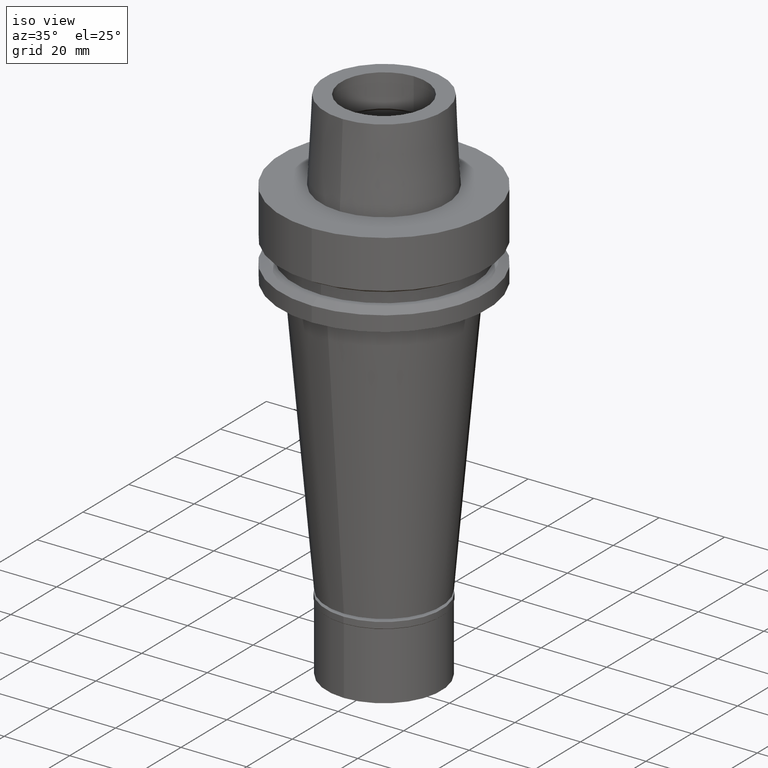
[diagram: clean part render]
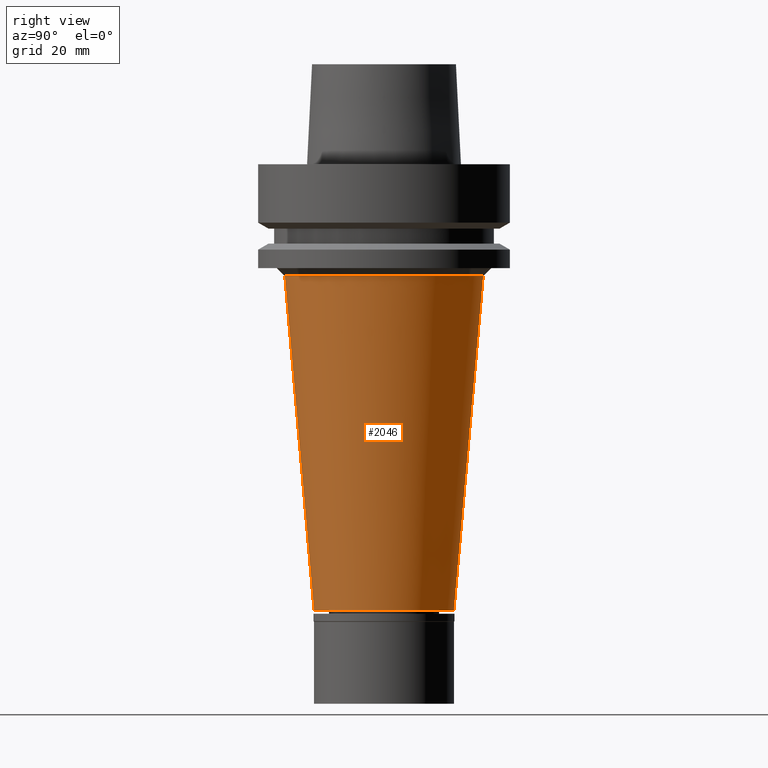
[diagram: tour spotlight — one face highlighted and labeled with its STEP entity id]
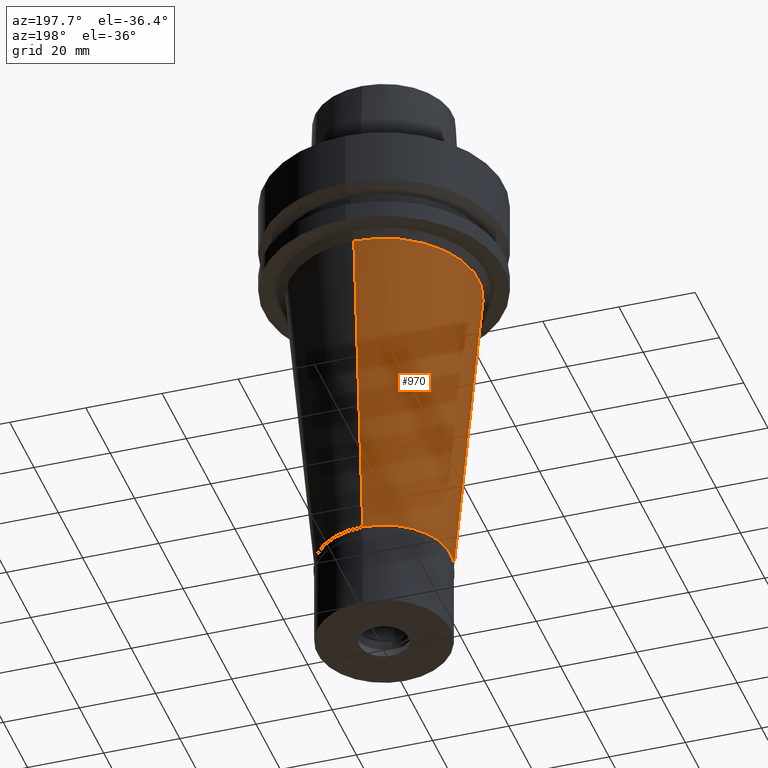
[diagram: tour spotlight — one face highlighted and labeled with its STEP entity id]
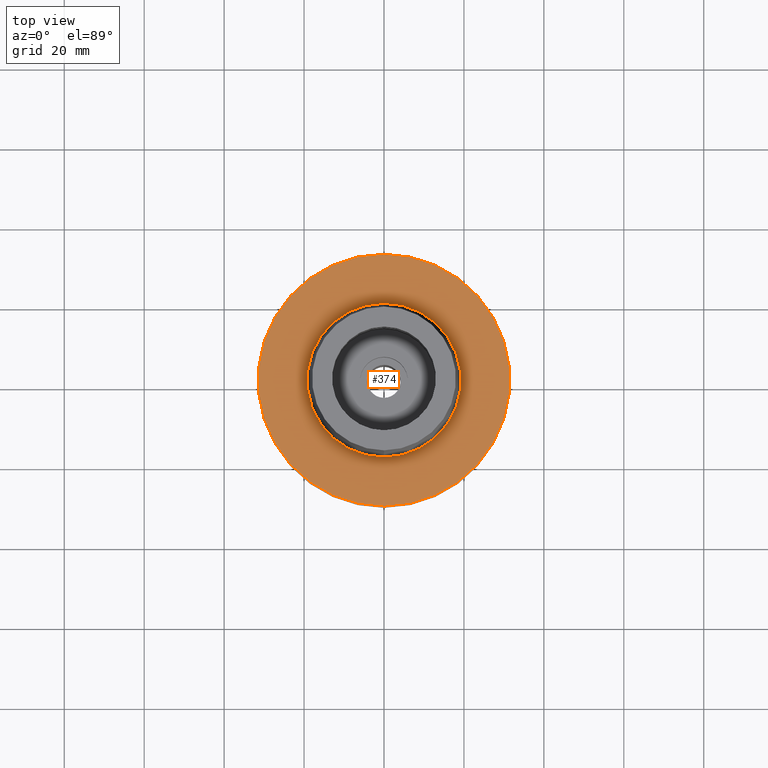
[diagram: tour spotlight — one face highlighted and labeled with its STEP entity id]
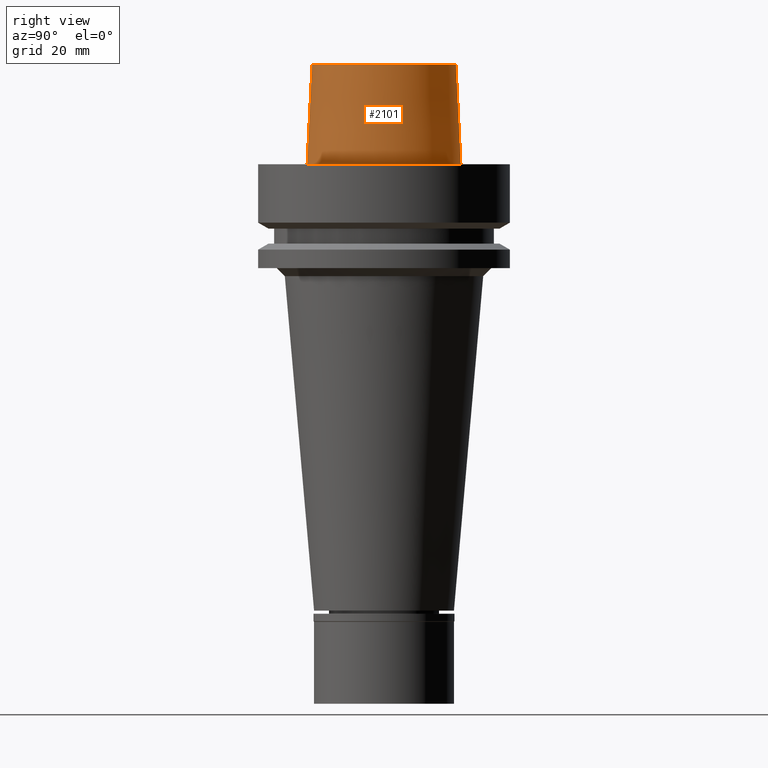
[diagram: tour spotlight — one face highlighted and labeled with its STEP entity id]
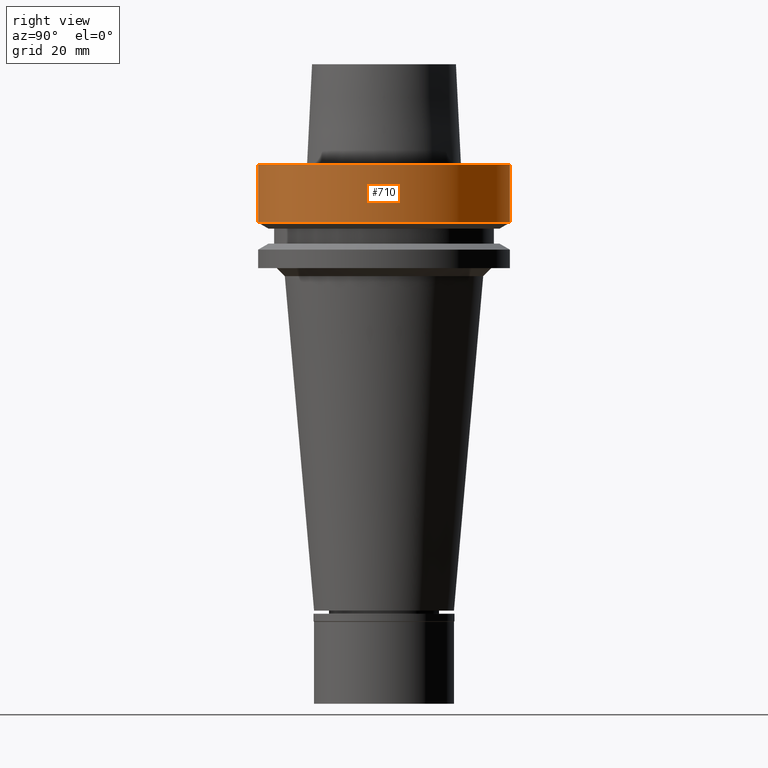
[diagram: tour spotlight — one face highlighted and labeled with its STEP entity id]
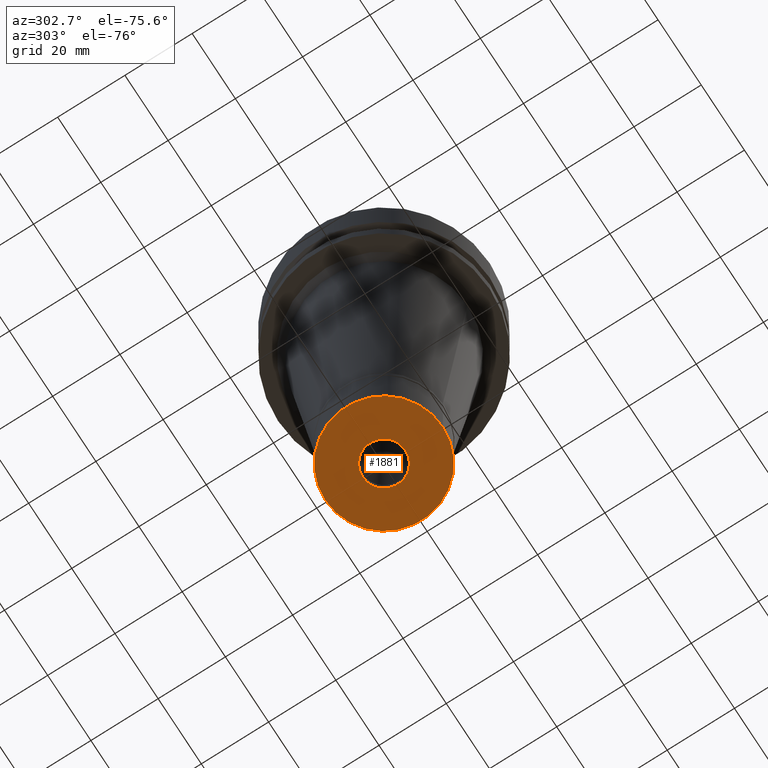
[diagram: tour spotlight — one face highlighted and labeled with its STEP entity id]
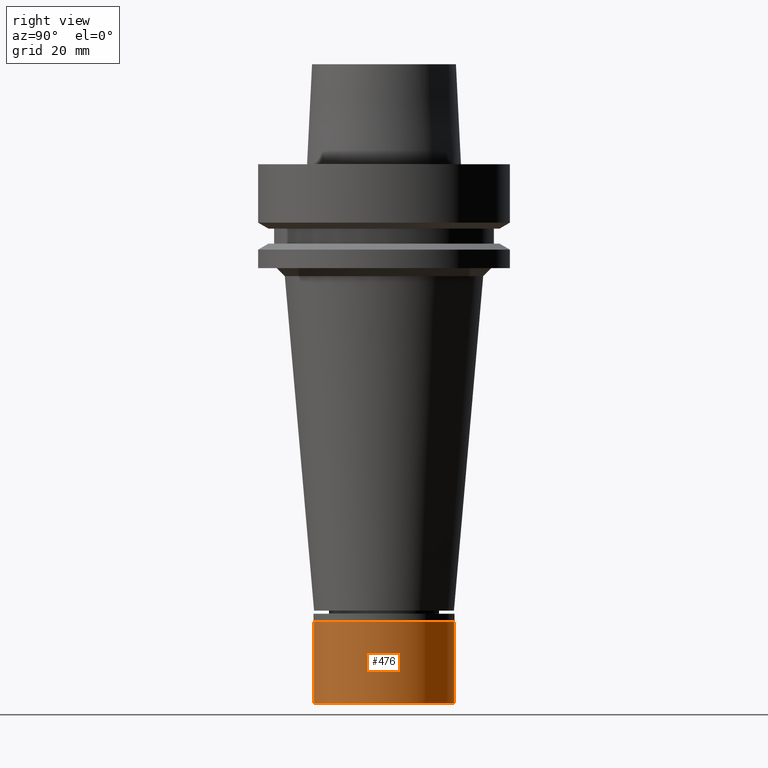
[diagram: tour spotlight — one face highlighted and labeled with its STEP entity id]
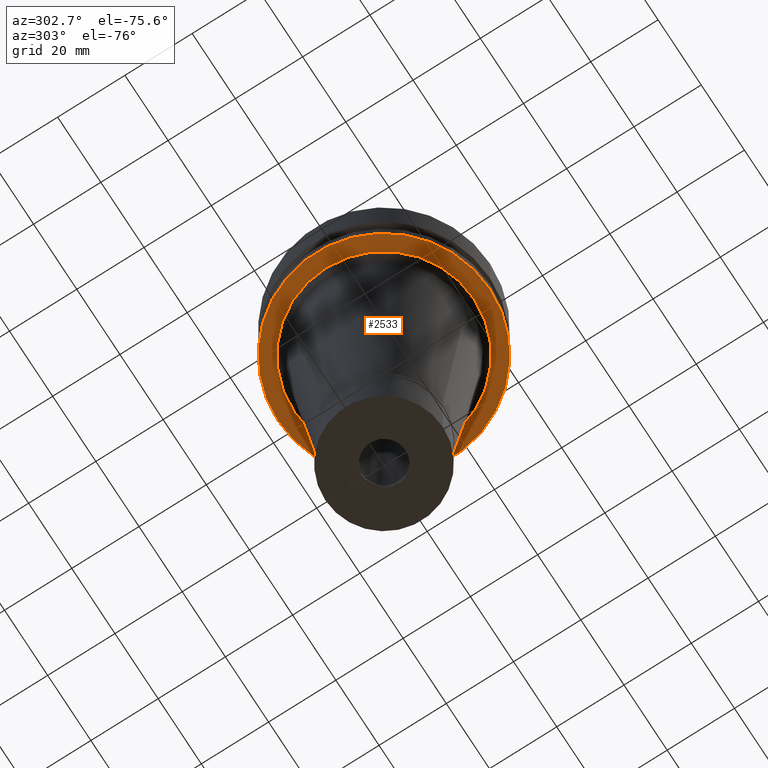
[diagram: tour spotlight — one face highlighted and labeled with its STEP entity id]
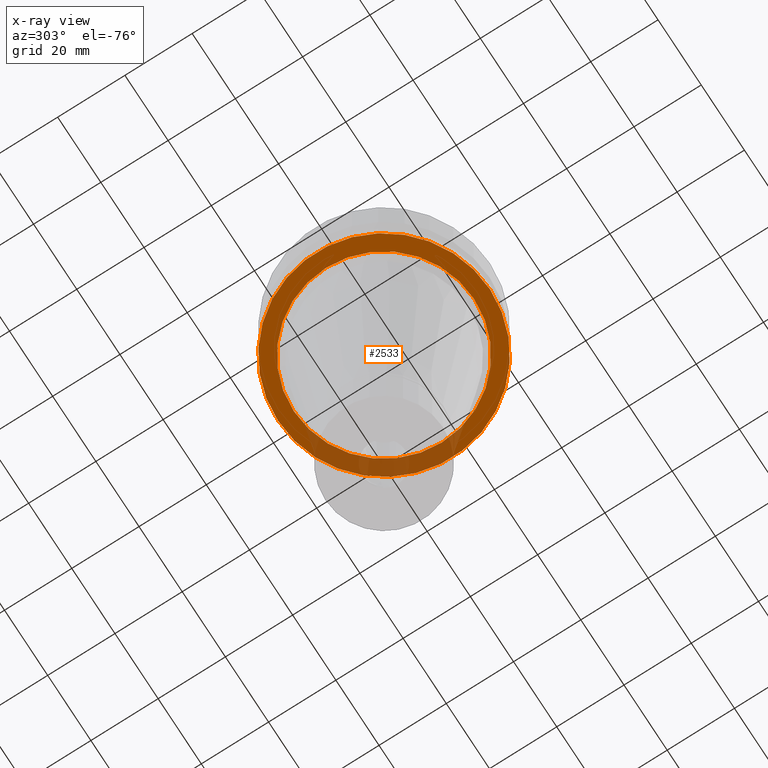
[diagram: x-ray of the same camera — body ghosted, this tour face saturated]
A machine part: a face-by-face anatomy tour. The part has 81 B-rep faces; the first image is the clean iso view, then the 8 largest visible faces are spotlighted one at a time (largest first), each with its STEP entity span.

Face 1 — right view, entity #2046. In plain terms, the highlighted conical surface has half-angle 5 deg.
Definition (entity closure, byte-faithful):
#174 = AXIS2_PLACEMENT_3D ( 'NONE', #2096, #1861, #338 ) ;
#192 = EDGE_LOOP ( 'NONE', ( #701, #1673, #830, #2825 ) ) ;
#198 = EDGE_CURVE ( 'NONE', #372, #1360, #465, .T. ) ;
#262 = CARTESIAN_POINT ( 'NONE',  ( 0.0000000000000000000, -24.82280113712000258, -28.00000000000000000 ) ) ;
#302 = CARTESIAN_POINT ( 'NONE',  ( 0.0000000000000000000, -24.82280113712000258, -28.00000000000000000 ) ) ;
#332 = CARTESIAN_POINT ( 'NONE',  ( 0.0000000000000000000, 24.82280113712000258, -28.00000000000000000 ) ) ;
#338 = DIRECTION ( 'NONE',  ( 0.0000000000000000000, -1.000000000000000000, 0.0000000000000000000 ) ) ;
#372 = VERTEX_POINT ( 'NONE', #443 ) ;
#443 = CARTESIAN_POINT ( 'NONE',  ( 0.0000000000000000000, -17.50000000000000000, -111.6999999999999886 ) ) ;
#465 = CIRCLE ( 'NONE', #1069, 17.50000000000000000 ) ;
#492 = CARTESIAN_POINT ( 'NONE',  ( 0.0000000000000000000, 0.0000000000000000000, -69.84999999999999432 ) ) ;
#521 = EDGE_CURVE ( 'NONE', #2835, #1360, #2209, .T. ) ;
#558 = CARTESIAN_POINT ( 'NONE',  ( 0.0000000000000000000, 17.50000000000000000, -111.6999999999999886 ) ) ;
#652 = VECTOR ( 'NONE', #1497, 1000.000000000000114 ) ;
#685 = VECTOR ( 'NONE', #996, 1000.000000000000114 ) ;
#701 = ORIENTED_EDGE ( 'NONE', *, *, #1047, .F. ) ;
#781 = DIRECTION ( 'NONE',  ( 0.0000000000000000000, -1.000000000000000000, 0.0000000000000000000 ) ) ;
#830 = ORIENTED_EDGE ( 'NONE', *, *, #198, .T. ) ;
#956 = DIRECTION ( 'NONE',  ( 0.0000000000000000000, 0.0000000000000000000, 1.000000000000000000 ) ) ;
#996 = DIRECTION ( 'NONE',  ( 0.0000000000000000000, 0.08715574274766389740, -0.9961946980917451011 ) ) ;
#1028 = EDGE_CURVE ( 'NONE', #2541, #372, #1134, .T. ) ;
#1047 = EDGE_CURVE ( 'NONE', #2541, #2835, #1199, .T. ) ;
#1069 = AXIS2_PLACEMENT_3D ( 'NONE', #2820, #1948, #781 ) ;
#1134 = LINE ( 'NONE', #262, #685 ) ;
#1199 = CIRCLE ( 'NONE', #174, 24.82280113712000258 ) ;
#1360 = VERTEX_POINT ( 'NONE', #558 ) ;
#1497 = DIRECTION ( 'NONE',  ( 0.0000000000000000000, -0.08715574274766389740, -0.9961946980917451011 ) ) ;
#1596 = FACE_OUTER_BOUND ( 'NONE', #192, .T. ) ;
#1673 = ORIENTED_EDGE ( 'NONE', *, *, #1028, .T. ) ;
#1799 = AXIS2_PLACEMENT_3D ( 'NONE', #492, #956, #1847 ) ;
#1847 = DIRECTION ( 'NONE',  ( 0.0000000000000000000, 1.000000000000000000, 0.0000000000000000000 ) ) ;
#1861 = DIRECTION ( 'NONE',  ( 0.0000000000000000000, 0.0000000000000000000, 1.000000000000000000 ) ) ;
#1948 = DIRECTION ( 'NONE',  ( 0.0000000000000000000, 0.0000000000000000000, 1.000000000000000000 ) ) ;
#2046 = ADVANCED_FACE ( 'NONE', ( #1596 ), #2680, .T. ) ;
#2096 = CARTESIAN_POINT ( 'NONE',  ( 0.0000000000000000000, 0.0000000000000000000, -28.00000000000000000 ) ) ;
#2209 = LINE ( 'NONE', #2657, #652 ) ;
#2541 = VERTEX_POINT ( 'NONE', #302 ) ;
#2657 = CARTESIAN_POINT ( 'NONE',  ( 0.0000000000000000000, 24.82280113712000258, -28.00000000000000000 ) ) ;
#2680 = CONICAL_SURFACE ( 'NONE', #1799, 21.16140056856000129, 0.08726646259969973729 ) ;
#2820 = CARTESIAN_POINT ( 'NONE',  ( 0.0000000000000000000, 0.0000000000000000000, -111.6999999999999886 ) ) ;
#2825 = ORIENTED_EDGE ( 'NONE', *, *, #521, .F. ) ;
#2835 = VERTEX_POINT ( 'NONE', #332 ) ;

Face 2 — auxiliary view, entity #970. In plain terms, the highlighted conical surface has half-angle 5 deg.
Definition (entity closure, byte-faithful):
#257 = CARTESIAN_POINT ( 'NONE',  ( 0.0000000000000000000, 0.0000000000000000000, -111.6999999999999886 ) ) ;
#262 = CARTESIAN_POINT ( 'NONE',  ( 0.0000000000000000000, -24.82280113712000258, -28.00000000000000000 ) ) ;
#302 = CARTESIAN_POINT ( 'NONE',  ( 0.0000000000000000000, -24.82280113712000258, -28.00000000000000000 ) ) ;
#332 = CARTESIAN_POINT ( 'NONE',  ( 0.0000000000000000000, 24.82280113712000258, -28.00000000000000000 ) ) ;
#347 = CARTESIAN_POINT ( 'NONE',  ( 0.0000000000000000000, 0.0000000000000000000, -28.00000000000000000 ) ) ;
#372 = VERTEX_POINT ( 'NONE', #443 ) ;
#443 = CARTESIAN_POINT ( 'NONE',  ( 0.0000000000000000000, -17.50000000000000000, -111.6999999999999886 ) ) ;
#521 = EDGE_CURVE ( 'NONE', #2835, #1360, #2209, .T. ) ;
#558 = CARTESIAN_POINT ( 'NONE',  ( 0.0000000000000000000, 17.50000000000000000, -111.6999999999999886 ) ) ;
#589 = AXIS2_PLACEMENT_3D ( 'NONE', #2272, #2676, #967 ) ;
#592 = AXIS2_PLACEMENT_3D ( 'NONE', #347, #1879, #2566 ) ;
#652 = VECTOR ( 'NONE', #1497, 1000.000000000000114 ) ;
#685 = VECTOR ( 'NONE', #996, 1000.000000000000114 ) ;
#723 = FACE_OUTER_BOUND ( 'NONE', #2079, .T. ) ;
#960 = EDGE_CURVE ( 'NONE', #1360, #372, #2494, .T. ) ;
#967 = DIRECTION ( 'NONE',  ( 0.0000000000000000000, 1.000000000000000000, 0.0000000000000000000 ) ) ;
#970 = ADVANCED_FACE ( 'NONE', ( #723 ), #2853, .T. ) ;
#996 = DIRECTION ( 'NONE',  ( 0.0000000000000000000, 0.08715574274766389740, -0.9961946980917451011 ) ) ;
#1028 = EDGE_CURVE ( 'NONE', #2541, #372, #1134, .T. ) ;
#1114 = ORIENTED_EDGE ( 'NONE', *, *, #1028, .F. ) ;
#1134 = LINE ( 'NONE', #262, #685 ) ;
#1358 = EDGE_CURVE ( 'NONE', #2541, #2835, #1389, .T. ) ;
#1360 = VERTEX_POINT ( 'NONE', #558 ) ;
#1389 = CIRCLE ( 'NONE', #592, 24.82280113712000258 ) ;
#1497 = DIRECTION ( 'NONE',  ( 0.0000000000000000000, -0.08715574274766389740, -0.9961946980917451011 ) ) ;
#1593 = DIRECTION ( 'NONE',  ( 0.0000000000000000000, 0.0000000000000000000, 1.000000000000000000 ) ) ;
#1879 = DIRECTION ( 'NONE',  ( 0.0000000000000000000, 0.0000000000000000000, -1.000000000000000000 ) ) ;
#1942 = ORIENTED_EDGE ( 'NONE', *, *, #1358, .T. ) ;
#2018 = DIRECTION ( 'NONE',  ( 0.0000000000000000000, 1.000000000000000000, 0.0000000000000000000 ) ) ;
#2079 = EDGE_LOOP ( 'NONE', ( #2616, #1114, #1942, #2091 ) ) ;
#2091 = ORIENTED_EDGE ( 'NONE', *, *, #521, .T. ) ;
#2209 = LINE ( 'NONE', #2657, #652 ) ;
#2272 = CARTESIAN_POINT ( 'NONE',  ( 0.0000000000000000000, 0.0000000000000000000, -69.84999999999999432 ) ) ;
#2438 = AXIS2_PLACEMENT_3D ( 'NONE', #257, #1593, #2018 ) ;
#2494 = CIRCLE ( 'NONE', #2438, 17.50000000000000000 ) ;
#2541 = VERTEX_POINT ( 'NONE', #302 ) ;
#2566 = DIRECTION ( 'NONE',  ( 0.0000000000000000000, -1.000000000000000000, 0.0000000000000000000 ) ) ;
#2616 = ORIENTED_EDGE ( 'NONE', *, *, #960, .T. ) ;
#2657 = CARTESIAN_POINT ( 'NONE',  ( 0.0000000000000000000, 24.82280113712000258, -28.00000000000000000 ) ) ;
#2676 = DIRECTION ( 'NONE',  ( 0.0000000000000000000, 0.0000000000000000000, 1.000000000000000000 ) ) ;
#2835 = VERTEX_POINT ( 'NONE', #332 ) ;
#2853 = CONICAL_SURFACE ( 'NONE', #589, 21.16140056856000129, 0.08726646259969973729 ) ;

Face 3 — top view, entity #374. In plain terms, the highlighted planar face has unit normal (0, 0, 1).
Definition (entity closure, byte-faithful):
#163 = DIRECTION ( 'NONE',  ( 1.000000000000000000, 0.0000000000000000000, 0.0000000000000000000 ) ) ;
#242 = CARTESIAN_POINT ( 'NONE',  ( 0.0000000000000000000, 0.0000000000000000000, 1.136868377215999875E-13 ) ) ;
#374 = ADVANCED_FACE ( 'NONE', ( #2024, #2464 ), #1995, .T. ) ;
#451 = CIRCLE ( 'NONE', #1334, 19.24999954280000125 ) ;
#503 = VERTEX_POINT ( 'NONE', #1584 ) ;
#611 = VERTEX_POINT ( 'NONE', #1038 ) ;
#643 = AXIS2_PLACEMENT_3D ( 'NONE', #1949, #2179, #1316 ) ;
#718 = ORIENTED_EDGE ( 'NONE', *, *, #769, .F. ) ;
#750 = VERTEX_POINT ( 'NONE', #1359 ) ;
#769 = EDGE_CURVE ( 'NONE', #750, #503, #835, .T. ) ;
#791 = AXIS2_PLACEMENT_3D ( 'NONE', #1331, #1046, #163 ) ;
#802 = DIRECTION ( 'NONE',  ( 0.0000000000000000000, -1.000000000000000000, 0.0000000000000000000 ) ) ;
#835 = CIRCLE ( 'NONE', #2457, 31.50000000000000000 ) ;
#1038 = CARTESIAN_POINT ( 'NONE',  ( 0.0000000000000000000, 19.24999954280000125, 3.410605131648000255E-13 ) ) ;
#1044 = DIRECTION ( 'NONE',  ( 0.0000000000000000000, 0.0000000000000000000, 1.000000000000000000 ) ) ;
#1046 = DIRECTION ( 'NONE',  ( 0.0000000000000000000, 0.0000000000000000000, 1.000000000000000000 ) ) ;
#1112 = DIRECTION ( 'NONE',  ( 0.0000000000000000000, 0.0000000000000000000, -1.000000000000000000 ) ) ;
#1285 = CARTESIAN_POINT ( 'NONE',  ( 0.0000000000000000000, 0.0000000000000000000, 5.115907697473000027E-13 ) ) ;
#1316 = DIRECTION ( 'NONE',  ( 0.0000000000000000000, 1.000000000000000000, 0.0000000000000000000 ) ) ;
#1331 = CARTESIAN_POINT ( 'NONE',  ( 0.0000000000000000000, 0.0000000000000000000, 0.0000000000000000000 ) ) ;
#1334 = AXIS2_PLACEMENT_3D ( 'NONE', #1285, #2159, #2841 ) ;
#1345 = ORIENTED_EDGE ( 'NONE', *, *, #2349, .F. ) ;
#1359 = CARTESIAN_POINT ( 'NONE',  ( 0.0000000000000000000, -31.50000000000000000, 1.136868377215999875E-13 ) ) ;
#1436 = CARTESIAN_POINT ( 'NONE',  ( 0.0000000000000000000, -19.24999954280000125, 3.410605131648000255E-13 ) ) ;
#1455 = CARTESIAN_POINT ( 'NONE',  ( 0.0000000000000000000, 0.0000000000000000000, 5.115907697473000027E-13 ) ) ;
#1541 = DIRECTION ( 'NONE',  ( 0.0000000000000000000, -1.000000000000000000, 0.0000000000000000000 ) ) ;
#1584 = CARTESIAN_POINT ( 'NONE',  ( 0.0000000000000000000, 31.50000000000000000, 1.136868377215999875E-13 ) ) ;
#1613 = CIRCLE ( 'NONE', #643, 31.50000000000000000 ) ;
#1722 = ORIENTED_EDGE ( 'NONE', *, *, #2433, .F. ) ;
#1878 = EDGE_LOOP ( 'NONE', ( #1722, #718 ) ) ;
#1949 = CARTESIAN_POINT ( 'NONE',  ( 0.0000000000000000000, 0.0000000000000000000, 1.136868377215999875E-13 ) ) ;
#1995 = PLANE ( 'NONE',  #791 ) ;
#2024 = FACE_OUTER_BOUND ( 'NONE', #1878, .T. ) ;
#2029 = CIRCLE ( 'NONE', #2160, 19.24999954280000125 ) ;
#2060 = ORIENTED_EDGE ( 'NONE', *, *, #2731, .F. ) ;
#2159 = DIRECTION ( 'NONE',  ( 0.0000000000000000000, 0.0000000000000000000, 1.000000000000000000 ) ) ;
#2160 = AXIS2_PLACEMENT_3D ( 'NONE', #1455, #1044, #802 ) ;
#2179 = DIRECTION ( 'NONE',  ( 0.0000000000000000000, 0.0000000000000000000, -1.000000000000000000 ) ) ;
#2202 = VERTEX_POINT ( 'NONE', #1436 ) ;
#2349 = EDGE_CURVE ( 'NONE', #611, #2202, #451, .T. ) ;
#2433 = EDGE_CURVE ( 'NONE', #503, #750, #1613, .T. ) ;
#2457 = AXIS2_PLACEMENT_3D ( 'NONE', #242, #1112, #1541 ) ;
#2464 = FACE_BOUND ( 'NONE', #2810, .T. ) ;
#2731 = EDGE_CURVE ( 'NONE', #2202, #611, #2029, .T. ) ;
#2810 = EDGE_LOOP ( 'NONE', ( #1345, #2060 ) ) ;
#2841 = DIRECTION ( 'NONE',  ( 0.0000000000000000000, 1.000000000000000000, 0.0000000000000000000 ) ) ;

Face 4 — right view, entity #2101. In plain terms, the highlighted conical surface has half-angle 2.862 deg.
Definition (entity closure, byte-faithful):
#8 = VERTEX_POINT ( 'NONE', #1832 ) ;
#15 = CARTESIAN_POINT ( 'NONE',  ( 0.0000000000000000000, -18.00000182882000033, 25.00000000000000000 ) ) ;
#34 = CIRCLE ( 'NONE', #364, 18.00000182882000033 ) ;
#166 = DIRECTION ( 'NONE',  ( 0.0000000000000000000, 0.04993752584486958745, -0.9987523434327917338 ) ) ;
#187 = DIRECTION ( 'NONE',  ( 0.0000000000000000000, 1.000000000000000000, 0.0000000000000000000 ) ) ;
#364 = AXIS2_PLACEMENT_3D ( 'NONE', #2400, #849, #187 ) ;
#584 = EDGE_CURVE ( 'NONE', #8, #611, #1715, .T. ) ;
#611 = VERTEX_POINT ( 'NONE', #1038 ) ;
#687 = DIRECTION ( 'NONE',  ( 0.0000000000000000000, -0.04993752584486958745, -0.9987523434327917338 ) ) ;
#782 = EDGE_CURVE ( 'NONE', #1230, #2202, #2666, .T. ) ;
#802 = DIRECTION ( 'NONE',  ( 0.0000000000000000000, -1.000000000000000000, 0.0000000000000000000 ) ) ;
#849 = DIRECTION ( 'NONE',  ( 0.0000000000000000000, 0.0000000000000000000, -1.000000000000000000 ) ) ;
#873 = AXIS2_PLACEMENT_3D ( 'NONE', #2790, #1265, #2341 ) ;
#1038 = CARTESIAN_POINT ( 'NONE',  ( 0.0000000000000000000, 19.24999954280000125, 3.410605131648000255E-13 ) ) ;
#1044 = DIRECTION ( 'NONE',  ( 0.0000000000000000000, 0.0000000000000000000, 1.000000000000000000 ) ) ;
#1060 = ORIENTED_EDGE ( 'NONE', *, *, #2459, .T. ) ;
#1230 = VERTEX_POINT ( 'NONE', #1405 ) ;
#1265 = DIRECTION ( 'NONE',  ( 0.0000000000000000000, 0.0000000000000000000, -1.000000000000000000 ) ) ;
#1292 = ORIENTED_EDGE ( 'NONE', *, *, #2731, .T. ) ;
#1366 = ORIENTED_EDGE ( 'NONE', *, *, #584, .F. ) ;
#1405 = CARTESIAN_POINT ( 'NONE',  ( 0.0000000000000000000, -18.00000182882000033, 25.00000000000000000 ) ) ;
#1436 = CARTESIAN_POINT ( 'NONE',  ( 0.0000000000000000000, -19.24999954280000125, 3.410605131648000255E-13 ) ) ;
#1455 = CARTESIAN_POINT ( 'NONE',  ( 0.0000000000000000000, 0.0000000000000000000, 5.115907697473000027E-13 ) ) ;
#1704 = CONICAL_SURFACE ( 'NONE', #873, 18.62500068580999724, 0.04995830450907576964 ) ;
#1715 = LINE ( 'NONE', #2138, #2591 ) ;
#1832 = CARTESIAN_POINT ( 'NONE',  ( 0.0000000000000000000, 18.00000182882000033, 25.00000000000000000 ) ) ;
#2029 = CIRCLE ( 'NONE', #2160, 19.24999954280000125 ) ;
#2101 = ADVANCED_FACE ( 'NONE', ( #2329 ), #1704, .T. ) ;
#2138 = CARTESIAN_POINT ( 'NONE',  ( 0.0000000000000000000, 18.00000182882000033, 25.00000000000000000 ) ) ;
#2160 = AXIS2_PLACEMENT_3D ( 'NONE', #1455, #1044, #802 ) ;
#2202 = VERTEX_POINT ( 'NONE', #1436 ) ;
#2329 = FACE_OUTER_BOUND ( 'NONE', #2678, .T. ) ;
#2341 = DIRECTION ( 'NONE',  ( 0.0000000000000000000, -1.000000000000000000, 0.0000000000000000000 ) ) ;
#2400 = CARTESIAN_POINT ( 'NONE',  ( 0.0000000000000000000, 0.0000000000000000000, 25.00000000000000000 ) ) ;
#2407 = VECTOR ( 'NONE', #687, 999.9999999999998863 ) ;
#2459 = EDGE_CURVE ( 'NONE', #8, #1230, #34, .T. ) ;
#2591 = VECTOR ( 'NONE', #166, 999.9999999999998863 ) ;
#2666 = LINE ( 'NONE', #15, #2407 ) ;
#2678 = EDGE_LOOP ( 'NONE', ( #1060, #2746, #1292, #1366 ) ) ;
#2731 = EDGE_CURVE ( 'NONE', #2202, #611, #2029, .T. ) ;
#2746 = ORIENTED_EDGE ( 'NONE', *, *, #782, .T. ) ;
#2790 = CARTESIAN_POINT ( 'NONE',  ( 0.0000000000000000000, 0.0000000000000000000, 12.50000000000000000 ) ) ;

Face 5 — right view, entity #710. In plain terms, the highlighted cylindrical surface (partial cylindrical patch) has radius 31.5 mm, axis along (0, 0, 1).
Definition (entity closure, byte-faithful):
#29 = DIRECTION ( 'NONE',  ( 0.0000000000000000000, -4.130355870612999632E-14, -1.000000000000000000 ) ) ;
#158 = EDGE_CURVE ( 'NONE', #503, #2050, #185, .T. ) ;
#185 = LINE ( 'NONE', #2385, #607 ) ;
#359 = DIRECTION ( 'NONE',  ( 0.0000000000000000000, 1.000000000000000000, 0.0000000000000000000 ) ) ;
#381 = AXIS2_PLACEMENT_3D ( 'NONE', #1945, #2395, #1313 ) ;
#389 = ORIENTED_EDGE ( 'NONE', *, *, #2697, .T. ) ;
#503 = VERTEX_POINT ( 'NONE', #1584 ) ;
#573 = CARTESIAN_POINT ( 'NONE',  ( 0.0000000000000000000, 0.0000000000000000000, -135.9650000000000034 ) ) ;
#607 = VECTOR ( 'NONE', #2374, 1000.000000000000000 ) ;
#643 = AXIS2_PLACEMENT_3D ( 'NONE', #1949, #2179, #1316 ) ;
#710 = ADVANCED_FACE ( 'NONE', ( #1885 ), #2557, .T. ) ;
#731 = EDGE_CURVE ( 'NONE', #2416, #2050, #793, .T. ) ;
#750 = VERTEX_POINT ( 'NONE', #1359 ) ;
#793 = CIRCLE ( 'NONE', #381, 31.50000000000000000 ) ;
#1313 = DIRECTION ( 'NONE',  ( 0.0000000000000000000, -1.000000000000000000, 0.0000000000000000000 ) ) ;
#1316 = DIRECTION ( 'NONE',  ( 0.0000000000000000000, 1.000000000000000000, 0.0000000000000000000 ) ) ;
#1323 = EDGE_LOOP ( 'NONE', ( #2767, #389, #1439, #1990 ) ) ;
#1359 = CARTESIAN_POINT ( 'NONE',  ( 0.0000000000000000000, -31.50000000000000000, 1.136868377215999875E-13 ) ) ;
#1439 = ORIENTED_EDGE ( 'NONE', *, *, #731, .T. ) ;
#1584 = CARTESIAN_POINT ( 'NONE',  ( 0.0000000000000000000, 31.50000000000000000, 1.136868377215999875E-13 ) ) ;
#1613 = CIRCLE ( 'NONE', #643, 31.50000000000000000 ) ;
#1792 = CARTESIAN_POINT ( 'NONE',  ( 0.0000000000000000000, -31.50000000000000000, 7.579122514774000189E-14 ) ) ;
#1885 = FACE_OUTER_BOUND ( 'NONE', #1323, .T. ) ;
#1931 = VECTOR ( 'NONE', #29, 1000.000000000000000 ) ;
#1945 = CARTESIAN_POINT ( 'NONE',  ( 0.0000000000000000000, 0.0000000000000000000, -14.62250092523999889 ) ) ;
#1949 = CARTESIAN_POINT ( 'NONE',  ( 0.0000000000000000000, 0.0000000000000000000, 1.136868377215999875E-13 ) ) ;
#1990 = ORIENTED_EDGE ( 'NONE', *, *, #158, .F. ) ;
#2043 = AXIS2_PLACEMENT_3D ( 'NONE', #573, #2340, #359 ) ;
#2050 = VERTEX_POINT ( 'NONE', #2511 ) ;
#2179 = DIRECTION ( 'NONE',  ( 0.0000000000000000000, 0.0000000000000000000, -1.000000000000000000 ) ) ;
#2235 = LINE ( 'NONE', #1792, #1931 ) ;
#2340 = DIRECTION ( 'NONE',  ( 0.0000000000000000000, 0.0000000000000000000, 1.000000000000000000 ) ) ;
#2374 = DIRECTION ( 'NONE',  ( 0.0000000000000000000, 4.130355870612999632E-14, -1.000000000000000000 ) ) ;
#2385 = CARTESIAN_POINT ( 'NONE',  ( 0.0000000000000000000, 31.50000000000000000, 7.579122514774000189E-14 ) ) ;
#2395 = DIRECTION ( 'NONE',  ( 0.0000000000000000000, 0.0000000000000000000, 1.000000000000000000 ) ) ;
#2416 = VERTEX_POINT ( 'NONE', #2655 ) ;
#2433 = EDGE_CURVE ( 'NONE', #503, #750, #1613, .T. ) ;
#2511 = CARTESIAN_POINT ( 'NONE',  ( 0.0000000000000000000, 31.50000000000000000, -14.62250092523999889 ) ) ;
#2557 = CYLINDRICAL_SURFACE ( 'NONE', #2043, 31.50000000000000000 ) ;
#2655 = CARTESIAN_POINT ( 'NONE',  ( 0.0000000000000000000, -31.50000000000000000, -14.62250092523999889 ) ) ;
#2697 = EDGE_CURVE ( 'NONE', #750, #2416, #2235, .T. ) ;
#2767 = ORIENTED_EDGE ( 'NONE', *, *, #2433, .T. ) ;

Face 6 — auxiliary view, entity #1881. In plain terms, the highlighted planar face has unit normal (0, 0, -1).
Definition (entity closure, byte-faithful):
#55 = DIRECTION ( 'NONE',  ( 0.0000000000000000000, 0.0000000000000000000, -1.000000000000000000 ) ) ;
#74 = CARTESIAN_POINT ( 'NONE',  ( 0.0000000000000000000, 0.0000000000000000000, -22.50000000000000000 ) ) ;
#102 = DIRECTION ( 'NONE',  ( 0.0000000000000000000, -1.000000000000000000, 0.0000000000000000000 ) ) ;
#186 = AXIS2_PLACEMENT_3D ( 'NONE', #629, #646, #2612 ) ;
#231 = CIRCLE ( 'NONE', #2219, 6.349999999998999556 ) ;
#292 = EDGE_CURVE ( 'NONE', #623, #2553, #2086, .T. ) ;
#435 = ORIENTED_EDGE ( 'NONE', *, *, #2813, .F. ) ;
#471 = CARTESIAN_POINT ( 'NONE',  ( 0.0000000000000000000, -17.50000000000000000, -22.50000000000000000 ) ) ;
#486 = DIRECTION ( 'NONE',  ( 0.0000000000000000000, 0.0000000000000000000, 1.000000000000000000 ) ) ;
#495 = ORIENTED_EDGE ( 'NONE', *, *, #292, .F. ) ;
#623 = VERTEX_POINT ( 'NONE', #806 ) ;
#629 = CARTESIAN_POINT ( 'NONE',  ( 0.0000000000000000000, 0.0000000000000000000, -22.50000000000000000 ) ) ;
#646 = DIRECTION ( 'NONE',  ( 0.0000000000000000000, 0.0000000000000000000, 1.000000000000000000 ) ) ;
#686 = AXIS2_PLACEMENT_3D ( 'NONE', #1481, #2576, #1681 ) ;
#727 = CARTESIAN_POINT ( 'NONE',  ( 0.0000000000000000000, 0.0000000000000000000, -22.50000000000000000 ) ) ;
#751 = DIRECTION ( 'NONE',  ( 0.0000000000000000000, -1.000000000000000000, 0.0000000000000000000 ) ) ;
#806 = CARTESIAN_POINT ( 'NONE',  ( 0.0000000000000000000, 17.50000000000000000, -22.50000000000000000 ) ) ;
#988 = DIRECTION ( 'NONE',  ( 0.0000000000000000000, -1.000000000000000000, 0.0000000000000000000 ) ) ;
#1178 = PLANE ( 'NONE',  #2081 ) ;
#1188 = CARTESIAN_POINT ( 'NONE',  ( 0.0000000000000000000, 0.0000000000000000000, -22.50000000000000000 ) ) ;
#1390 = ORIENTED_EDGE ( 'NONE', *, *, #1917, .F. ) ;
#1448 = VERTEX_POINT ( 'NONE', #2538 ) ;
#1473 = CIRCLE ( 'NONE', #1789, 17.50000000000000000 ) ;
#1481 = CARTESIAN_POINT ( 'NONE',  ( 0.0000000000000000000, 0.0000000000000000000, -22.50000000000000000 ) ) ;
#1608 = DIRECTION ( 'NONE',  ( 0.0000000000000000000, 0.0000000000000000000, -1.000000000000000000 ) ) ;
#1681 = DIRECTION ( 'NONE',  ( 0.0000000000000000000, 1.000000000000000000, 0.0000000000000000000 ) ) ;
#1733 = EDGE_LOOP ( 'NONE', ( #495, #2467 ) ) ;
#1789 = AXIS2_PLACEMENT_3D ( 'NONE', #74, #486, #751 ) ;
#1881 = ADVANCED_FACE ( 'NONE', ( #2530, #2736 ), #1178, .T. ) ;
#1912 = VERTEX_POINT ( 'NONE', #2287 ) ;
#1917 = EDGE_CURVE ( 'NONE', #1912, #1448, #231, .T. ) ;
#2078 = CIRCLE ( 'NONE', #686, 6.349999999998999556 ) ;
#2081 = AXIS2_PLACEMENT_3D ( 'NONE', #727, #55, #102 ) ;
#2086 = CIRCLE ( 'NONE', #186, 17.50000000000000000 ) ;
#2095 = EDGE_LOOP ( 'NONE', ( #435, #1390 ) ) ;
#2219 = AXIS2_PLACEMENT_3D ( 'NONE', #1188, #1608, #988 ) ;
#2287 = CARTESIAN_POINT ( 'NONE',  ( 0.0000000000000000000, -6.349999999998999556, -22.50000000000000000 ) ) ;
#2467 = ORIENTED_EDGE ( 'NONE', *, *, #2601, .F. ) ;
#2530 = FACE_OUTER_BOUND ( 'NONE', #1733, .T. ) ;
#2538 = CARTESIAN_POINT ( 'NONE',  ( 0.0000000000000000000, 6.349999999998999556, -22.50000000000000000 ) ) ;
#2553 = VERTEX_POINT ( 'NONE', #471 ) ;
#2576 = DIRECTION ( 'NONE',  ( 0.0000000000000000000, 0.0000000000000000000, -1.000000000000000000 ) ) ;
#2601 = EDGE_CURVE ( 'NONE', #2553, #623, #1473, .T. ) ;
#2612 = DIRECTION ( 'NONE',  ( 0.0000000000000000000, 1.000000000000000000, 0.0000000000000000000 ) ) ;
#2736 = FACE_BOUND ( 'NONE', #2095, .T. ) ;
#2813 = EDGE_CURVE ( 'NONE', #1448, #1912, #2078, .T. ) ;

Face 7 — right view, entity #476. In plain terms, the highlighted cylindrical surface (partial cylindrical patch) has radius 17.5 mm, axis along (0, 0, -1).
Definition (entity closure, byte-faithful):
#21 = DIRECTION ( 'NONE',  ( 0.0000000000000000000, -1.000000000000000000, 0.0000000000000000000 ) ) ;
#24 = ORIENTED_EDGE ( 'NONE', *, *, #2601, .T. ) ;
#74 = CARTESIAN_POINT ( 'NONE',  ( 0.0000000000000000000, 0.0000000000000000000, -22.50000000000000000 ) ) ;
#270 = LINE ( 'NONE', #952, #1884 ) ;
#385 = CARTESIAN_POINT ( 'NONE',  ( 0.0000000000000000000, -17.50000000000000000, -2.000000000000000000 ) ) ;
#399 = DIRECTION ( 'NONE',  ( 0.0000000000000000000, 1.000000000000000000, 0.0000000000000000000 ) ) ;
#404 = ORIENTED_EDGE ( 'NONE', *, *, #947, .T. ) ;
#409 = VERTEX_POINT ( 'NONE', #897 ) ;
#471 = CARTESIAN_POINT ( 'NONE',  ( 0.0000000000000000000, -17.50000000000000000, -22.50000000000000000 ) ) ;
#476 = ADVANCED_FACE ( 'NONE', ( #481 ), #827, .T. ) ;
#481 = FACE_OUTER_BOUND ( 'NONE', #1745, .T. ) ;
#486 = DIRECTION ( 'NONE',  ( 0.0000000000000000000, 0.0000000000000000000, 1.000000000000000000 ) ) ;
#566 = EDGE_CURVE ( 'NONE', #409, #2761, #884, .T. ) ;
#605 = CARTESIAN_POINT ( 'NONE',  ( 0.0000000000000000000, 0.0000000000000000000, -2.000000000000000000 ) ) ;
#623 = VERTEX_POINT ( 'NONE', #806 ) ;
#714 = CARTESIAN_POINT ( 'NONE',  ( 0.0000000000000000000, 0.0000000000000000000, 0.0000000000000000000 ) ) ;
#751 = DIRECTION ( 'NONE',  ( 0.0000000000000000000, -1.000000000000000000, 0.0000000000000000000 ) ) ;
#754 = AXIS2_PLACEMENT_3D ( 'NONE', #605, #2777, #399 ) ;
#806 = CARTESIAN_POINT ( 'NONE',  ( 0.0000000000000000000, 17.50000000000000000, -22.50000000000000000 ) ) ;
#827 = CYLINDRICAL_SURFACE ( 'NONE', #1025, 17.50000000000000000 ) ;
#884 = CIRCLE ( 'NONE', #754, 17.50000000000000000 ) ;
#897 = CARTESIAN_POINT ( 'NONE',  ( 0.0000000000000000000, 17.50000000000000000, -2.000000000000000000 ) ) ;
#947 = EDGE_CURVE ( 'NONE', #2761, #2553, #270, .T. ) ;
#952 = CARTESIAN_POINT ( 'NONE',  ( 0.0000000000000000000, -17.50000000000000000, -2.000000000000000000 ) ) ;
#1025 = AXIS2_PLACEMENT_3D ( 'NONE', #714, #1806, #21 ) ;
#1058 = VECTOR ( 'NONE', #1766, 1000.000000000000000 ) ;
#1124 = EDGE_CURVE ( 'NONE', #409, #623, #2444, .T. ) ;
#1365 = CARTESIAN_POINT ( 'NONE',  ( 0.0000000000000000000, 17.50000000000000000, -2.000000000000000000 ) ) ;
#1465 = ORIENTED_EDGE ( 'NONE', *, *, #566, .T. ) ;
#1473 = CIRCLE ( 'NONE', #1789, 17.50000000000000000 ) ;
#1745 = EDGE_LOOP ( 'NONE', ( #1465, #404, #24, #2738 ) ) ;
#1766 = DIRECTION ( 'NONE',  ( 0.0000000000000000000, 0.0000000000000000000, -1.000000000000000000 ) ) ;
#1789 = AXIS2_PLACEMENT_3D ( 'NONE', #74, #486, #751 ) ;
#1798 = DIRECTION ( 'NONE',  ( 0.0000000000000000000, 0.0000000000000000000, -1.000000000000000000 ) ) ;
#1806 = DIRECTION ( 'NONE',  ( 0.0000000000000000000, 0.0000000000000000000, -1.000000000000000000 ) ) ;
#1884 = VECTOR ( 'NONE', #1798, 1000.000000000000000 ) ;
#2444 = LINE ( 'NONE', #1365, #1058 ) ;
#2553 = VERTEX_POINT ( 'NONE', #471 ) ;
#2601 = EDGE_CURVE ( 'NONE', #2553, #623, #1473, .T. ) ;
#2738 = ORIENTED_EDGE ( 'NONE', *, *, #1124, .F. ) ;
#2761 = VERTEX_POINT ( 'NONE', #385 ) ;
#2777 = DIRECTION ( 'NONE',  ( 0.0000000000000000000, 0.0000000000000000000, -1.000000000000000000 ) ) ;

Face 8 — auxiliary view, entity #2533. An x-ray twin of the same camera follows (body ghosted, this face saturated) — the face is partly hidden behind the body. In plain terms, the highlighted planar face has unit normal (0, 0, 1).
Definition (entity closure, byte-faithful):
#83 = EDGE_LOOP ( 'NONE', ( #600, #1599 ) ) ;
#110 = DIRECTION ( 'NONE',  ( 0.0000000000000000000, 1.000000000000000000, 0.0000000000000000000 ) ) ;
#114 = DIRECTION ( 'NONE',  ( 0.0000000000000000000, 0.0000000000000000000, 1.000000000000000000 ) ) ;
#140 = CIRCLE ( 'NONE', #1119, 26.82280113712000258 ) ;
#180 = DIRECTION ( 'NONE',  ( 0.0000000000000000000, -1.000000000000000000, 0.0000000000000000000 ) ) ;
#182 = CIRCLE ( 'NONE', #2861, 31.50000000000000000 ) ;
#266 = CARTESIAN_POINT ( 'NONE',  ( 0.0000000000000000000, 26.82280113712000258, -26.00000000000000000 ) ) ;
#322 = AXIS2_PLACEMENT_3D ( 'NONE', #1332, #114, #1646 ) ;
#428 = CARTESIAN_POINT ( 'NONE',  ( 0.0000000000000000000, 0.0000000000000000000, -26.00000000000000000 ) ) ;
#600 = ORIENTED_EDGE ( 'NONE', *, *, #1068, .F. ) ;
#639 = AXIS2_PLACEMENT_3D ( 'NONE', #1447, #1859, #110 ) ;
#648 = FACE_BOUND ( 'NONE', #1263, .T. ) ;
#658 = EDGE_CURVE ( 'NONE', #1774, #2537, #140, .T. ) ;
#705 = DIRECTION ( 'NONE',  ( 1.000000000000000000, 0.0000000000000000000, 0.0000000000000000000 ) ) ;
#715 = ORIENTED_EDGE ( 'NONE', *, *, #1329, .F. ) ;
#1068 = EDGE_CURVE ( 'NONE', #1842, #2289, #1561, .T. ) ;
#1119 = AXIS2_PLACEMENT_3D ( 'NONE', #1926, #1469, #180 ) ;
#1123 = CARTESIAN_POINT ( 'NONE',  ( 0.0000000000000000000, 31.50000000000000000, -26.00000000000000000 ) ) ;
#1233 = CARTESIAN_POINT ( 'NONE',  ( 0.0000000000000000000, -31.50000000000000000, -26.00000000000000000 ) ) ;
#1263 = EDGE_LOOP ( 'NONE', ( #715, #2186 ) ) ;
#1329 = EDGE_CURVE ( 'NONE', #2537, #1774, #2723, .T. ) ;
#1332 = CARTESIAN_POINT ( 'NONE',  ( 0.0000000000000000000, 0.0000000000000000000, -26.00000000000000000 ) ) ;
#1403 = DIRECTION ( 'NONE',  ( 0.0000000000000000000, 0.0000000000000000000, 1.000000000000000000 ) ) ;
#1447 = CARTESIAN_POINT ( 'NONE',  ( 0.0000000000000000000, 0.0000000000000000000, -26.00000000000000000 ) ) ;
#1469 = DIRECTION ( 'NONE',  ( 0.0000000000000000000, 0.0000000000000000000, -1.000000000000000000 ) ) ;
#1516 = EDGE_CURVE ( 'NONE', #2289, #1842, #182, .T. ) ;
#1561 = CIRCLE ( 'NONE', #322, 31.50000000000000000 ) ;
#1599 = ORIENTED_EDGE ( 'NONE', *, *, #1516, .F. ) ;
#1644 = CARTESIAN_POINT ( 'NONE',  ( 0.0000000000000000000, 0.0000000000000000000, -26.00000000000000000 ) ) ;
#1646 = DIRECTION ( 'NONE',  ( 0.0000000000000000000, 1.000000000000000000, 0.0000000000000000000 ) ) ;
#1749 = AXIS2_PLACEMENT_3D ( 'NONE', #428, #1403, #705 ) ;
#1774 = VERTEX_POINT ( 'NONE', #2012 ) ;
#1842 = VERTEX_POINT ( 'NONE', #1123 ) ;
#1859 = DIRECTION ( 'NONE',  ( 0.0000000000000000000, 0.0000000000000000000, -1.000000000000000000 ) ) ;
#1911 = DIRECTION ( 'NONE',  ( 0.0000000000000000000, -1.000000000000000000, 0.0000000000000000000 ) ) ;
#1926 = CARTESIAN_POINT ( 'NONE',  ( 0.0000000000000000000, 0.0000000000000000000, -26.00000000000000000 ) ) ;
#2012 = CARTESIAN_POINT ( 'NONE',  ( 0.0000000000000000000, -26.82280113712000258, -26.00000000000000000 ) ) ;
#2186 = ORIENTED_EDGE ( 'NONE', *, *, #658, .F. ) ;
#2289 = VERTEX_POINT ( 'NONE', #1233 ) ;
#2413 = PLANE ( 'NONE',  #1749 ) ;
#2526 = DIRECTION ( 'NONE',  ( 0.0000000000000000000, 0.0000000000000000000, 1.000000000000000000 ) ) ;
#2533 = ADVANCED_FACE ( 'NONE', ( #2631, #648 ), #2413, .F. ) ;
#2537 = VERTEX_POINT ( 'NONE', #266 ) ;
#2631 = FACE_OUTER_BOUND ( 'NONE', #83, .T. ) ;
#2723 = CIRCLE ( 'NONE', #639, 26.82280113712000258 ) ;
#2861 = AXIS2_PLACEMENT_3D ( 'NONE', #1644, #2526, #1911 ) ;